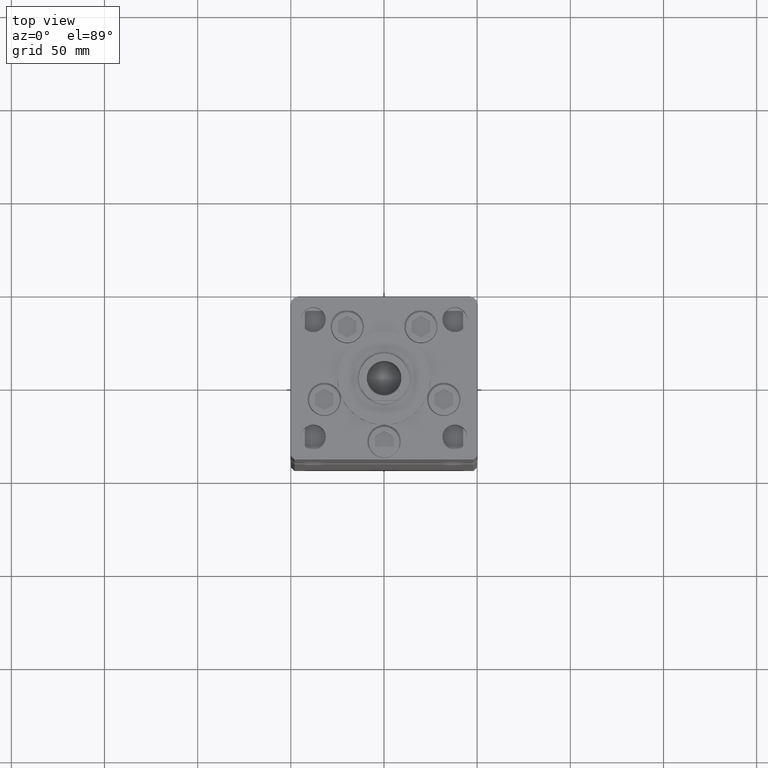
[diagram: clean part render]
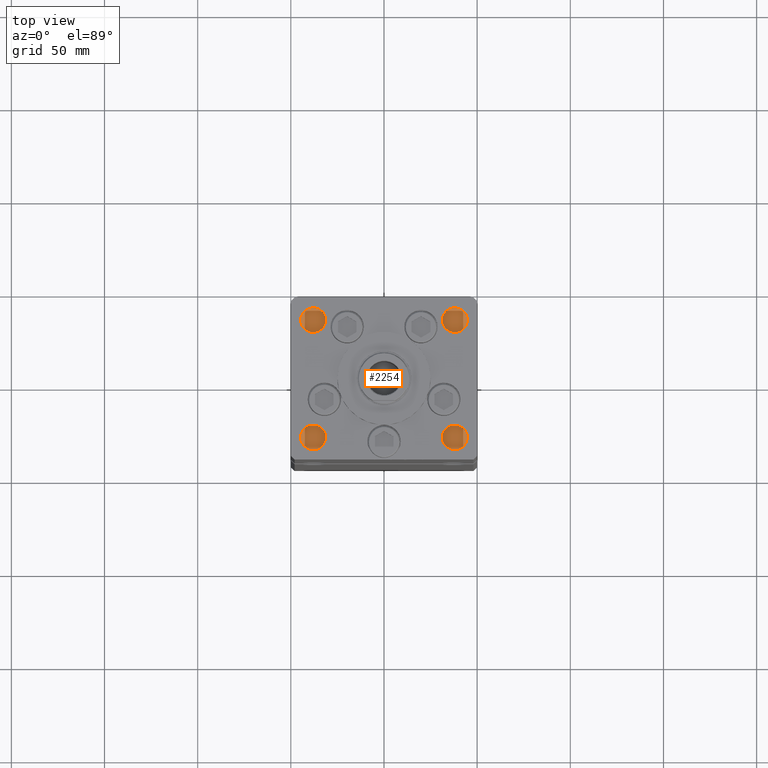
[diagram: same view with one face highlighted and labeled with its STEP entity id]
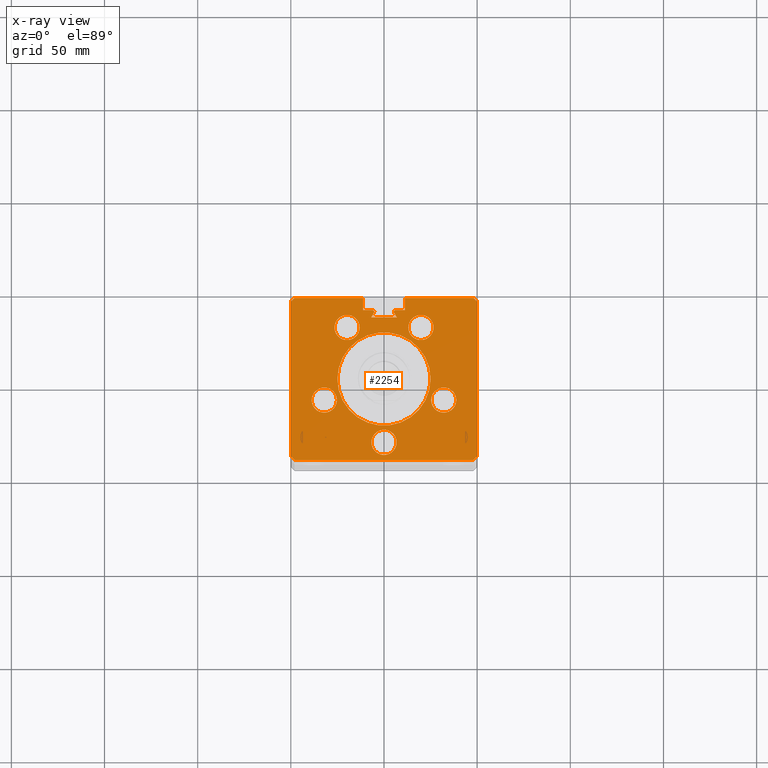
[diagram: x-ray of the same camera — body ghosted, the highlighted face saturated]
A machine part, top view. The second image highlights one B-rep face of the part: STEP entity #2254.
The next image is the same camera in x-ray: the body ghosted, the highlighted face saturated — about 0% of this face is hidden behind the body in this view.
In plain terms, the highlighted planar face has unit normal (0, 0, -1).
Its self-contained STEP definition (entity closure, byte-faithful):
#128 = LINE ( 'NONE', #29151, #1618 ) ;
#365 = EDGE_CURVE ( 'NONE', #45851, #8902, #9621, .T. ) ;
#373 = EDGE_CURVE ( 'NONE', #24704, #3070, #43483, .T. ) ;
#393 = AXIS2_PLACEMENT_3D ( 'NONE', #17926, #34862, #26002 ) ;
#640 = CARTESIAN_POINT ( 'NONE',  ( 19.44653440471351757, 11.22746187336663404, 318.5000000000000000 ) ) ;
#1029 = ORIENTED_EDGE ( 'NONE', *, *, #5400, .F. ) ;
#1094 = EDGE_CURVE ( 'NONE', #39997, #35175, #38328, .T. ) ;
#1304 = DIRECTION ( 'NONE',  ( -0.7071067811865487940, -0.7071067811865463515, 0.000000000000000000 ) ) ;
#1527 = LINE ( 'NONE', #45612, #27227 ) ;
#1570 = VERTEX_POINT ( 'NONE', #40987 ) ;
#1618 = VECTOR ( 'NONE', #12227, 1000.000000000000000 ) ;
#1704 = CIRCLE ( 'NONE', #24841, 6.749999999999999112 ) ;
#1822 = VECTOR ( 'NONE', #4913, 1000.000000000000000 ) ;
#1877 = EDGE_CURVE ( 'NONE', #23829, #8301, #1527, .T. ) ;
#2018 = LINE ( 'NONE', #30242, #17590 ) ;
#2077 = CIRCLE ( 'NONE', #12357, 6.749999999999999112 ) ;
#2140 = VERTEX_POINT ( 'NONE', #26643 ) ;
#2177 = ORIENTED_EDGE ( 'NONE', *, *, #12371, .F. ) ;
#2254 = ADVANCED_FACE ( 'NONE', ( #41652, #29288, #52674, #8076, #45681, #24732, #12364 ), #48661, .F. ) ;
#2402 = CARTESIAN_POINT ( 'NONE',  ( -32.05550741379015278, -11.33333333333334458, 318.5000000000000000 ) ) ;
#2474 = ORIENTED_EDGE ( 'NONE', *, *, #3939, .F. ) ;
#2650 = ORIENTED_EDGE ( 'NONE', *, *, #41981, .F. ) ;
#2820 = AXIS2_PLACEMENT_3D ( 'NONE', #49902, #45361, #13345 ) ;
#2922 = ORIENTED_EDGE ( 'NONE', *, *, #365, .T. ) ;
#3022 = CARTESIAN_POINT ( 'NONE',  ( 6.876153656360465050, 32.99999999999986500, 318.5000000000000000 ) ) ;
#3070 = VERTEX_POINT ( 'NONE', #46023 ) ;
#3311 = VECTOR ( 'NONE', #3841, 1000.000000000000000 ) ;
#3359 = ORIENTED_EDGE ( 'NONE', *, *, #35574, .F. ) ;
#3724 = VERTEX_POINT ( 'NONE', #15397 ) ;
#3816 = CARTESIAN_POINT ( 'NONE',  ( -49.99999999999998579, -41.49999999999999289, 318.5000000000000000 ) ) ;
#3841 = DIRECTION ( 'NONE',  ( -1.000000000000000000, 0.000000000000000000, 0.000000000000000000 ) ) ;
#3850 = AXIS2_PLACEMENT_3D ( 'NONE', #12082, #9296, #28212 ) ;
#3939 = EDGE_CURVE ( 'NONE', #28332, #12538, #29824, .T. ) ;
#4415 = VERTEX_POINT ( 'NONE', #25583 ) ;
#4441 = LINE ( 'NONE', #41514, #20926 ) ;
#4568 = ORIENTED_EDGE ( 'NONE', *, *, #28218, .F. ) ;
#4707 = CARTESIAN_POINT ( 'NONE',  ( -5.375042956467946276, 35.59999999999899245, 318.5000000000000000 ) ) ;
#4723 = CARTESIAN_POINT ( 'NONE',  ( -11.24999999999999645, 37.00000000000000000, 318.5000000000000000 ) ) ;
#4748 = ORIENTED_EDGE ( 'NONE', *, *, #373, .F. ) ;
#4913 = DIRECTION ( 'NONE',  ( -0.000000000000000000, -1.000000000000000000, 0.000000000000000000 ) ) ;
#5400 = EDGE_CURVE ( 'NONE', #7385, #44115, #48623, .T. ) ;
#5527 = AXIS2_PLACEMENT_3D ( 'NONE', #9136, #33852, #41930 ) ;
#5825 = CARTESIAN_POINT ( 'NONE',  ( -11.24999999999999645, 43.50000000000000000, 318.5000000000000000 ) ) ;
#6129 = EDGE_LOOP ( 'NONE', ( #2474, #25560 ) ) ;
#6143 = CARTESIAN_POINT ( 'NONE',  ( -11.24999999999999645, 0.000000000000000000, 318.5000000000000000 ) ) ;
#7179 = CIRCLE ( 'NONE', #14025, 25.00000000000000000 ) ;
#7189 = CARTESIAN_POINT ( 'NONE',  ( 48.00000000000000711, 43.50000000000000000, 318.5000000000000000 ) ) ;
#7385 = VERTEX_POINT ( 'NONE', #40725 ) ;
#7517 = CARTESIAN_POINT ( 'NONE',  ( -26.57068048781373903, 27.62499999999999645, 318.5000000000000000 ) ) ;
#7681 = DIRECTION ( 'NONE',  ( 3.344045254895050973E-16, -1.000000000000000000, 0.000000000000000000 ) ) ;
#7920 = CIRCLE ( 'NONE', #45710, 25.00000000000000000 ) ;
#8076 = FACE_BOUND ( 'NONE', #22018, .T. ) ;
#8301 = VERTEX_POINT ( 'NONE', #4723 ) ;
#8902 = VERTEX_POINT ( 'NONE', #25733 ) ;
#8916 = DIRECTION ( 'NONE',  ( 0.000000000000000000, 0.000000000000000000, 1.000000000000000000 ) ) ;
#9136 = CARTESIAN_POINT ( 'NONE',  ( -6.183333333333996151, 36.06666666666599497, 318.5000000000000000 ) ) ;
#9170 = CIRCLE ( 'NONE', #50364, 0.9333333333339999260 ) ;
#9179 = CARTESIAN_POINT ( 'NONE',  ( 19.82068048781374259, 27.62500000000000000, 318.5000000000000000 ) ) ;
#9296 = DIRECTION ( 'NONE',  ( 0.000000000000000000, 0.000000000000000000, 1.000000000000000000 ) ) ;
#9621 = LINE ( 'NONE', #32170, #39143 ) ;
#9684 = EDGE_CURVE ( 'NONE', #3070, #34656, #27831, .T. ) ;
#9799 = ORIENTED_EDGE ( 'NONE', *, *, #19607, .F. ) ;
#9944 = VECTOR ( 'NONE', #1304, 1000.000000000000000 ) ;
#9992 = DIRECTION ( 'NONE',  ( -0.7071067811865474617, -0.7071067811865474617, 0.000000000000000000 ) ) ;
#10386 = EDGE_CURVE ( 'NONE', #44115, #7385, #50578, .T. ) ;
#10429 = ORIENTED_EDGE ( 'NONE', *, *, #9684, .F. ) ;
#10678 = LINE ( 'NONE', #18460, #9944 ) ;
#10712 = ORIENTED_EDGE ( 'NONE', *, *, #45693, .T. ) ;
#11043 = CARTESIAN_POINT ( 'NONE',  ( -49.99999999999998579, -41.49999999999999289, 318.5000000000000000 ) ) ;
#11198 = ORIENTED_EDGE ( 'NONE', *, *, #15099, .F. ) ;
#11358 = EDGE_LOOP ( 'NONE', ( #27640, #10712, #2650, #38297, #27470, #37177, #2922, #34799, #10429, #4748, #40676, #46104, #22154, #11943, #50184, #33532, #26326, #3359, #26547 ) ) ;
#11608 = CARTESIAN_POINT ( 'NONE',  ( 0.000000000000000000, 0.000000000000000000, 318.5000000000000000 ) ) ;
#11943 = ORIENTED_EDGE ( 'NONE', *, *, #20694, .F. ) ;
#12082 = CARTESIAN_POINT ( 'NONE',  ( 32.05550741379015278, -11.33333333333334103, 318.5000000000000000 ) ) ;
#12227 = DIRECTION ( 'NONE',  ( 1.000000000000000000, 0.000000000000000000, 0.000000000000000000 ) ) ;
#12357 = AXIS2_PLACEMENT_3D ( 'NONE', #35016, #51407, #30990 ) ;
#12364 = FACE_BOUND ( 'NONE', #31579, .T. ) ;
#12371 = EDGE_CURVE ( 'NONE', #3724, #35675, #1704, .T. ) ;
#12538 = VERTEX_POINT ( 'NONE', #7517 ) ;
#12634 = AXIS2_PLACEMENT_3D ( 'NONE', #37343, #24461, #36553 ) ;
#12692 = CARTESIAN_POINT ( 'NONE',  ( 0.000000000000000000, 32.99999999999986500, 318.5000000000000000 ) ) ;
#13345 = DIRECTION ( 'NONE',  ( 1.000000000000000000, 0.000000000000000000, 0.000000000000000000 ) ) ;
#13448 = DIRECTION ( 'NONE',  ( 1.000000000000000000, 0.000000000000000000, 0.000000000000000000 ) ) ;
#13704 = DIRECTION ( 'NONE',  ( 0.000000000000000000, 0.000000000000000000, 1.000000000000000000 ) ) ;
#13744 = CARTESIAN_POINT ( 'NONE',  ( 2.081899558550500280E-15, -34.00000000000000000, 318.5000000000000000 ) ) ;
#14025 = AXIS2_PLACEMENT_3D ( 'NONE', #29726, #46124, #29994 ) ;
#14074 = CARTESIAN_POINT ( 'NONE',  ( 5.375042956467946276, 35.59999999999899245, 318.5000000000000000 ) ) ;
#14135 = VERTEX_POINT ( 'NONE', #5825 ) ;
#14239 = VERTEX_POINT ( 'NONE', #14919 ) ;
#14265 = AXIS2_PLACEMENT_3D ( 'NONE', #13744, #26917, #51374 ) ;
#14423 = VERTEX_POINT ( 'NONE', #4707 ) ;
#14717 = EDGE_CURVE ( 'NONE', #14239, #16409, #33644, .T. ) ;
#14919 = CARTESIAN_POINT ( 'NONE',  ( 11.24999999999998934, 43.50000000000000000, 318.5000000000000000 ) ) ;
#15043 = CARTESIAN_POINT ( 'NONE',  ( 38.80550741379015278, -11.33333333333334103, 318.5000000000000000 ) ) ;
#15099 = EDGE_CURVE ( 'NONE', #35675, #3724, #30981, .T. ) ;
#15349 = LINE ( 'NONE', #36305, #34684 ) ;
#15397 = CARTESIAN_POINT ( 'NONE',  ( -38.80550741379015278, -11.33333333333334458, 318.5000000000000000 ) ) ;
#16409 = VERTEX_POINT ( 'NONE', #25227 ) ;
#16525 = EDGE_LOOP ( 'NONE', ( #33609, #47949 ) ) ;
#16860 = CARTESIAN_POINT ( 'NONE',  ( 25.30550741379015278, -11.33333333333334103, 318.5000000000000000 ) ) ;
#17545 = DIRECTION ( 'NONE',  ( 0.000000000000000000, 0.000000000000000000, -1.000000000000000000 ) ) ;
#17590 = VECTOR ( 'NONE', #21887, 1000.000000000000000 ) ;
#17870 = CARTESIAN_POINT ( 'NONE',  ( 0.000000000000000000, 37.00000000000000000, 318.5000000000000000 ) ) ;
#17926 = CARTESIAN_POINT ( 'NONE',  ( -19.82068048781374259, 27.62499999999999645, 318.5000000000000000 ) ) ;
#18265 = DIRECTION ( 'NONE',  ( 0.000000000000000000, 0.000000000000000000, 1.000000000000000000 ) ) ;
#18335 = DIRECTION ( 'NONE',  ( 1.000000000000000000, 0.000000000000000000, 0.000000000000000000 ) ) ;
#18397 = CIRCLE ( 'NONE', #393, 6.749999999999999112 ) ;
#18460 = CARTESIAN_POINT ( 'NONE',  ( -48.00000000000000711, 43.50000000000000000, 318.5000000000000000 ) ) ;
#18907 = VERTEX_POINT ( 'NONE', #3022 ) ;
#18993 = DIRECTION ( 'NONE',  ( 1.000000000000000000, 0.000000000000000000, 0.000000000000000000 ) ) ;
#19607 = EDGE_CURVE ( 'NONE', #1570, #35522, #7920, .T. ) ;
#20012 = VECTOR ( 'NONE', #22509, 1000.000000000000000 ) ;
#20181 = DIRECTION ( 'NONE',  ( -0.000000000000000000, 0.000000000000000000, 1.000000000000000000 ) ) ;
#20200 = VECTOR ( 'NONE', #41475, 1000.000000000000114 ) ;
#20694 = EDGE_CURVE ( 'NONE', #29812, #25151, #52588, .T. ) ;
#20926 = VECTOR ( 'NONE', #7681, 1000.000000000000000 ) ;
#21887 = DIRECTION ( 'NONE',  ( 1.000000000000000000, 0.000000000000000000, 0.000000000000000000 ) ) ;
#22015 = AXIS2_PLACEMENT_3D ( 'NONE', #9179, #8916, #50556 ) ;
#22018 = EDGE_LOOP ( 'NONE', ( #26353, #4568 ) ) ;
#22154 = ORIENTED_EDGE ( 'NONE', *, *, #53085, .T. ) ;
#22187 = CARTESIAN_POINT ( 'NONE',  ( -47.99999999999998579, -43.50000000000000000, 318.5000000000000000 ) ) ;
#22509 = DIRECTION ( 'NONE',  ( 0.000000000000000000, 1.000000000000000000, 0.000000000000000000 ) ) ;
#22649 = VECTOR ( 'NONE', #9992, 1000.000000000000114 ) ;
#23069 = DIRECTION ( 'NONE',  ( 1.000000000000000000, 0.000000000000000000, 0.000000000000000000 ) ) ;
#23590 = DIRECTION ( 'NONE',  ( 0.000000000000000000, 0.000000000000000000, 1.000000000000000000 ) ) ;
#23694 = LINE ( 'NONE', #3816, #48343 ) ;
#23739 = CARTESIAN_POINT ( 'NONE',  ( 6.750000000000000888, -34.00000000000000000, 318.5000000000000000 ) ) ;
#23765 = VERTEX_POINT ( 'NONE', #15043 ) ;
#23829 = VERTEX_POINT ( 'NONE', #52148 ) ;
#24054 = VECTOR ( 'NONE', #26778, 1000.000000000000000 ) ;
#24250 = LINE ( 'NONE', #12692, #3311 ) ;
#24459 = CARTESIAN_POINT ( 'NONE',  ( 48.00000000000000711, 43.50000000000000000, 318.5000000000000000 ) ) ;
#24461 = DIRECTION ( 'NONE',  ( 0.000000000000000000, 0.000000000000000000, -1.000000000000000000 ) ) ;
#24704 = VERTEX_POINT ( 'NONE', #24459 ) ;
#24732 = FACE_OUTER_BOUND ( 'NONE', #11358, .T. ) ;
#24841 = AXIS2_PLACEMENT_3D ( 'NONE', #50269, #13704, #13448 ) ;
#24859 = CARTESIAN_POINT ( 'NONE',  ( 6.183333333333996151, 37.00000000000000000, 318.5000000000000000 ) ) ;
#25151 = VERTEX_POINT ( 'NONE', #24859 ) ;
#25227 = CARTESIAN_POINT ( 'NONE',  ( 11.24999999999999645, 37.00000000000000000, 318.5000000000000000 ) ) ;
#25241 = EDGE_CURVE ( 'NONE', #2140, #42393, #4441, .T. ) ;
#25325 = VECTOR ( 'NONE', #30784, 1000.000000000000000 ) ;
#25560 = ORIENTED_EDGE ( 'NONE', *, *, #47968, .F. ) ;
#25583 = CARTESIAN_POINT ( 'NONE',  ( -5.249999999999995559, 36.06666666666599497, 318.5000000000000000 ) ) ;
#25733 = CARTESIAN_POINT ( 'NONE',  ( 47.99999999999998579, -43.50000000000000000, 318.5000000000000000 ) ) ;
#25926 = EDGE_CURVE ( 'NONE', #42393, #45851, #23694, .T. ) ;
#26002 = DIRECTION ( 'NONE',  ( 1.000000000000000000, 0.000000000000000000, 0.000000000000000000 ) ) ;
#26326 = ORIENTED_EDGE ( 'NONE', *, *, #47440, .T. ) ;
#26353 = ORIENTED_EDGE ( 'NONE', *, *, #1094, .F. ) ;
#26357 = AXIS2_PLACEMENT_3D ( 'NONE', #45990, #18265, #38448 ) ;
#26482 = LINE ( 'NONE', #17870, #25325 ) ;
#26547 = ORIENTED_EDGE ( 'NONE', *, *, #29504, .F. ) ;
#26643 = CARTESIAN_POINT ( 'NONE',  ( -50.00000000000001421, 41.49999999999999289, 318.5000000000000000 ) ) ;
#26778 = DIRECTION ( 'NONE',  ( -3.344045254895050973E-16, -1.000000000000000000, 0.000000000000000000 ) ) ;
#26917 = DIRECTION ( 'NONE',  ( 0.000000000000000000, 0.000000000000000000, 1.000000000000000000 ) ) ;
#27227 = VECTOR ( 'NONE', #33764, 1000.000000000000000 ) ;
#27351 = DIRECTION ( 'NONE',  ( 0.7071067811865487940, -0.7071067811865463515, 0.000000000000000000 ) ) ;
#27470 = ORIENTED_EDGE ( 'NONE', *, *, #25241, .T. ) ;
#27640 = ORIENTED_EDGE ( 'NONE', *, *, #1877, .T. ) ;
#27754 = EDGE_CURVE ( 'NONE', #35522, #1570, #7179, .T. ) ;
#27831 = LINE ( 'NONE', #47208, #24054 ) ;
#28001 = DIRECTION ( 'NONE',  ( 0.7071067811865474617, -0.7071067811865474617, 0.000000000000000000 ) ) ;
#28146 = CARTESIAN_POINT ( 'NONE',  ( 13.07068048781374081, 27.62500000000000000, 318.5000000000000000 ) ) ;
#28212 = DIRECTION ( 'NONE',  ( 1.000000000000000000, 0.000000000000000000, 0.000000000000000000 ) ) ;
#28218 = EDGE_CURVE ( 'NONE', #35175, #39997, #2077, .T. ) ;
#28332 = VERTEX_POINT ( 'NONE', #45734 ) ;
#29151 = CARTESIAN_POINT ( 'NONE',  ( -11.24999999999999645, 43.50000000000000000, 318.5000000000000000 ) ) ;
#29250 = EDGE_CURVE ( 'NONE', #34656, #8902, #38484, .T. ) ;
#29288 = FACE_BOUND ( 'NONE', #31795, .T. ) ;
#29504 = EDGE_CURVE ( 'NONE', #23829, #4415, #34718, .T. ) ;
#29726 = CARTESIAN_POINT ( 'NONE',  ( 0.000000000000000000, 0.000000000000000000, 318.5000000000000000 ) ) ;
#29812 = VERTEX_POINT ( 'NONE', #14074 ) ;
#29824 = CIRCLE ( 'NONE', #40875, 6.749999999999999112 ) ;
#29994 = DIRECTION ( 'NONE',  ( 1.000000000000000000, 0.000000000000000000, 0.000000000000000000 ) ) ;
#30051 = ORIENTED_EDGE ( 'NONE', *, *, #27754, .F. ) ;
#30242 = CARTESIAN_POINT ( 'NONE',  ( -11.24999999999999645, 43.50000000000000000, 318.5000000000000000 ) ) ;
#30427 = DIRECTION ( 'NONE',  ( 0.000000000000000000, 0.000000000000000000, 1.000000000000000000 ) ) ;
#30784 = DIRECTION ( 'NONE',  ( -1.000000000000000000, 0.000000000000000000, 0.000000000000000000 ) ) ;
#30981 = CIRCLE ( 'NONE', #36987, 6.749999999999999112 ) ;
#30990 = DIRECTION ( 'NONE',  ( 1.000000000000000000, 0.000000000000000000, 0.000000000000000000 ) ) ;
#31579 = EDGE_LOOP ( 'NONE', ( #30051, #9799 ) ) ;
#31795 = EDGE_LOOP ( 'NONE', ( #33973, #1029 ) ) ;
#32170 = CARTESIAN_POINT ( 'NONE',  ( -47.99999999999998579, -43.50000000000000000, 318.5000000000000000 ) ) ;
#33146 = LINE ( 'NONE', #640, #20200 ) ;
#33532 = ORIENTED_EDGE ( 'NONE', *, *, #42219, .T. ) ;
#33609 = ORIENTED_EDGE ( 'NONE', *, *, #52940, .F. ) ;
#33617 = VERTEX_POINT ( 'NONE', #16860 ) ;
#33644 = LINE ( 'NONE', #45490, #1822 ) ;
#33764 = DIRECTION ( 'NONE',  ( -1.000000000000000000, 0.000000000000000000, 0.000000000000000000 ) ) ;
#33852 = DIRECTION ( 'NONE',  ( 0.000000000000000000, 0.000000000000000000, -1.000000000000000000 ) ) ;
#33973 = ORIENTED_EDGE ( 'NONE', *, *, #10386, .F. ) ;
#34656 = VERTEX_POINT ( 'NONE', #51725 ) ;
#34684 = VECTOR ( 'NONE', #52700, 1000.000000000000114 ) ;
#34718 = CIRCLE ( 'NONE', #5527, 0.9333333333339999260 ) ;
#34799 = ORIENTED_EDGE ( 'NONE', *, *, #29250, .F. ) ;
#34862 = DIRECTION ( 'NONE',  ( 0.000000000000000000, 0.000000000000000000, 1.000000000000000000 ) ) ;
#35016 = CARTESIAN_POINT ( 'NONE',  ( 19.82068048781374259, 27.62500000000000000, 318.5000000000000000 ) ) ;
#35113 = AXIS2_PLACEMENT_3D ( 'NONE', #47542, #40271, #23069 ) ;
#35175 = VERTEX_POINT ( 'NONE', #28146 ) ;
#35522 = VERTEX_POINT ( 'NONE', #38247 ) ;
#35574 = EDGE_CURVE ( 'NONE', #4415, #14423, #9170, .T. ) ;
#35675 = VERTEX_POINT ( 'NONE', #40120 ) ;
#35902 = VERTEX_POINT ( 'NONE', #51615 ) ;
#36248 = EDGE_LOOP ( 'NONE', ( #11198, #2177 ) ) ;
#36305 = CARTESIAN_POINT ( 'NONE',  ( -19.44653440471351757, 11.22746187336663404, 318.5000000000000000 ) ) ;
#36553 = DIRECTION ( 'NONE',  ( -1.000000000000000000, 0.000000000000000000, -0.000000000000000000 ) ) ;
#36987 = AXIS2_PLACEMENT_3D ( 'NONE', #2402, #23590, #44023 ) ;
#37177 = ORIENTED_EDGE ( 'NONE', *, *, #25926, .T. ) ;
#37187 = EDGE_CURVE ( 'NONE', #33617, #23765, #49537, .T. ) ;
#37343 = CARTESIAN_POINT ( 'NONE',  ( 0.000000000000000000, 0.000000000000000000, 318.5000000000000000 ) ) ;
#38247 = CARTESIAN_POINT ( 'NONE',  ( -25.00000000000000000, 0.000000000000000000, 318.5000000000000000 ) ) ;
#38297 = ORIENTED_EDGE ( 'NONE', *, *, #52089, .T. ) ;
#38328 = CIRCLE ( 'NONE', #22015, 6.749999999999999112 ) ;
#38448 = DIRECTION ( 'NONE',  ( 1.000000000000000000, 0.000000000000000000, 0.000000000000000000 ) ) ;
#38484 = LINE ( 'NONE', #43315, #22649 ) ;
#39143 = VECTOR ( 'NONE', #18993, 1000.000000000000000 ) ;
#39478 = CARTESIAN_POINT ( 'NONE',  ( -48.00000000000000711, 43.50000000000000000, 318.5000000000000000 ) ) ;
#39902 = CIRCLE ( 'NONE', #3850, 6.749999999999999112 ) ;
#39997 = VERTEX_POINT ( 'NONE', #46867 ) ;
#40032 = VECTOR ( 'NONE', #27351, 1000.000000000000000 ) ;
#40120 = CARTESIAN_POINT ( 'NONE',  ( -25.30550741379015278, -11.33333333333334458, 318.5000000000000000 ) ) ;
#40271 = DIRECTION ( 'NONE',  ( 0.000000000000000000, 0.000000000000000000, 1.000000000000000000 ) ) ;
#40676 = ORIENTED_EDGE ( 'NONE', *, *, #51514, .F. ) ;
#40725 = CARTESIAN_POINT ( 'NONE',  ( -6.749999999999997335, -34.00000000000000000, 318.5000000000000000 ) ) ;
#40746 = VERTEX_POINT ( 'NONE', #39478 ) ;
#40875 = AXIS2_PLACEMENT_3D ( 'NONE', #51111, #30427, #47892 ) ;
#40987 = CARTESIAN_POINT ( 'NONE',  ( 25.00000000000000000, 3.061616997868383043E-15, 318.5000000000000000 ) ) ;
#41475 = DIRECTION ( 'NONE',  ( 0.4999999999999987788, -0.8660254037844392627, 0.000000000000000000 ) ) ;
#41514 = CARTESIAN_POINT ( 'NONE',  ( -50.00000000000001421, 41.49999999999999289, 318.5000000000000000 ) ) ;
#41652 = FACE_BOUND ( 'NONE', #36248, .T. ) ;
#41930 = DIRECTION ( 'NONE',  ( 1.000000000000000000, 0.000000000000000000, 0.000000000000000000 ) ) ;
#41981 = EDGE_CURVE ( 'NONE', #40746, #14135, #128, .T. ) ;
#42219 = EDGE_CURVE ( 'NONE', #18907, #35902, #24250, .T. ) ;
#42393 = VERTEX_POINT ( 'NONE', #11043 ) ;
#42551 = CARTESIAN_POINT ( 'NONE',  ( -6.183333333333996151, 36.06666666666599497, 318.5000000000000000 ) ) ;
#42951 = LINE ( 'NONE', #6143, #20012 ) ;
#43315 = CARTESIAN_POINT ( 'NONE',  ( 49.99999999999998579, -41.49999999999999289, 318.5000000000000000 ) ) ;
#43483 = LINE ( 'NONE', #7189, #40032 ) ;
#44023 = DIRECTION ( 'NONE',  ( 1.000000000000000000, 0.000000000000000000, 0.000000000000000000 ) ) ;
#44115 = VERTEX_POINT ( 'NONE', #23739 ) ;
#44135 = DIRECTION ( 'NONE',  ( 1.000000000000000000, 0.000000000000000000, 0.000000000000000000 ) ) ;
#45361 = DIRECTION ( 'NONE',  ( 0.000000000000000000, 0.000000000000000000, -1.000000000000000000 ) ) ;
#45490 = CARTESIAN_POINT ( 'NONE',  ( 11.24999999999999645, 0.000000000000000000, 318.5000000000000000 ) ) ;
#45612 = CARTESIAN_POINT ( 'NONE',  ( 0.000000000000000000, 37.00000000000000000, 318.5000000000000000 ) ) ;
#45681 = FACE_BOUND ( 'NONE', #6129, .T. ) ;
#45693 = EDGE_CURVE ( 'NONE', #8301, #14135, #42951, .T. ) ;
#45710 = AXIS2_PLACEMENT_3D ( 'NONE', #11608, #20181, #44135 ) ;
#45734 = CARTESIAN_POINT ( 'NONE',  ( -13.07068048781374259, 27.62499999999999645, 318.5000000000000000 ) ) ;
#45851 = VERTEX_POINT ( 'NONE', #22187 ) ;
#45990 = CARTESIAN_POINT ( 'NONE',  ( 32.05550741379015278, -11.33333333333334103, 318.5000000000000000 ) ) ;
#46023 = CARTESIAN_POINT ( 'NONE',  ( 50.00000000000001421, 41.49999999999999289, 318.5000000000000000 ) ) ;
#46104 = ORIENTED_EDGE ( 'NONE', *, *, #14717, .T. ) ;
#46124 = DIRECTION ( 'NONE',  ( -0.000000000000000000, 0.000000000000000000, 1.000000000000000000 ) ) ;
#46867 = CARTESIAN_POINT ( 'NONE',  ( 26.57068048781373903, 27.62500000000000000, 318.5000000000000000 ) ) ;
#47208 = CARTESIAN_POINT ( 'NONE',  ( 50.00000000000001421, 41.49999999999999289, 318.5000000000000000 ) ) ;
#47440 = EDGE_CURVE ( 'NONE', #35902, #14423, #15349, .T. ) ;
#47542 = CARTESIAN_POINT ( 'NONE',  ( 2.081899558550500280E-15, -34.00000000000000000, 318.5000000000000000 ) ) ;
#47892 = DIRECTION ( 'NONE',  ( 1.000000000000000000, 0.000000000000000000, 0.000000000000000000 ) ) ;
#47949 = ORIENTED_EDGE ( 'NONE', *, *, #37187, .F. ) ;
#47968 = EDGE_CURVE ( 'NONE', #12538, #28332, #18397, .T. ) ;
#48343 = VECTOR ( 'NONE', #28001, 1000.000000000000114 ) ;
#48623 = CIRCLE ( 'NONE', #14265, 6.749999999999999112 ) ;
#48661 = PLANE ( 'NONE',  #12634 ) ;
#49537 = CIRCLE ( 'NONE', #26357, 6.749999999999999112 ) ;
#49902 = CARTESIAN_POINT ( 'NONE',  ( 6.183333333333996151, 36.06666666666599497, 318.5000000000000000 ) ) ;
#50184 = ORIENTED_EDGE ( 'NONE', *, *, #50582, .T. ) ;
#50269 = CARTESIAN_POINT ( 'NONE',  ( -32.05550741379015278, -11.33333333333334458, 318.5000000000000000 ) ) ;
#50364 = AXIS2_PLACEMENT_3D ( 'NONE', #42551, #17545, #18335 ) ;
#50556 = DIRECTION ( 'NONE',  ( 1.000000000000000000, 0.000000000000000000, 0.000000000000000000 ) ) ;
#50578 = CIRCLE ( 'NONE', #35113, 6.749999999999999112 ) ;
#50582 = EDGE_CURVE ( 'NONE', #29812, #18907, #33146, .T. ) ;
#51111 = CARTESIAN_POINT ( 'NONE',  ( -19.82068048781374259, 27.62499999999999645, 318.5000000000000000 ) ) ;
#51374 = DIRECTION ( 'NONE',  ( 1.000000000000000000, 0.000000000000000000, 0.000000000000000000 ) ) ;
#51407 = DIRECTION ( 'NONE',  ( 0.000000000000000000, 0.000000000000000000, 1.000000000000000000 ) ) ;
#51514 = EDGE_CURVE ( 'NONE', #14239, #24704, #2018, .T. ) ;
#51615 = CARTESIAN_POINT ( 'NONE',  ( -6.876153656360465050, 32.99999999999986500, 318.5000000000000000 ) ) ;
#51725 = CARTESIAN_POINT ( 'NONE',  ( 49.99999999999998579, -41.49999999999999289, 318.5000000000000000 ) ) ;
#52089 = EDGE_CURVE ( 'NONE', #40746, #2140, #10678, .T. ) ;
#52148 = CARTESIAN_POINT ( 'NONE',  ( -6.183333333333996151, 37.00000000000000000, 318.5000000000000000 ) ) ;
#52588 = CIRCLE ( 'NONE', #2820, 0.9333333333339999260 ) ;
#52674 = FACE_BOUND ( 'NONE', #16525, .T. ) ;
#52700 = DIRECTION ( 'NONE',  ( 0.4999999999999987788, 0.8660254037844392627, 0.000000000000000000 ) ) ;
#52940 = EDGE_CURVE ( 'NONE', #23765, #33617, #39902, .T. ) ;
#53085 = EDGE_CURVE ( 'NONE', #16409, #25151, #26482, .T. ) ;